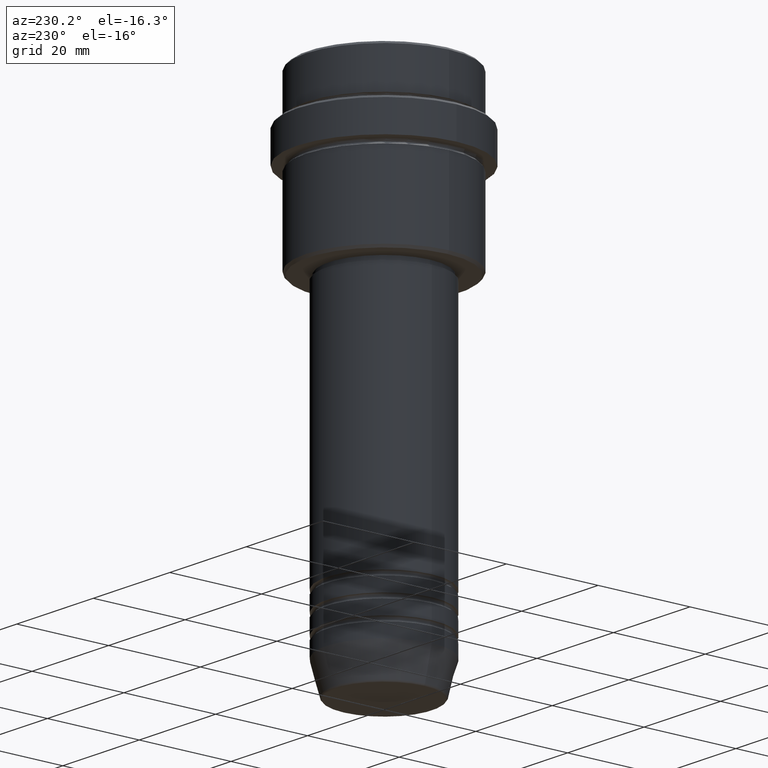
[diagram: clean part render]
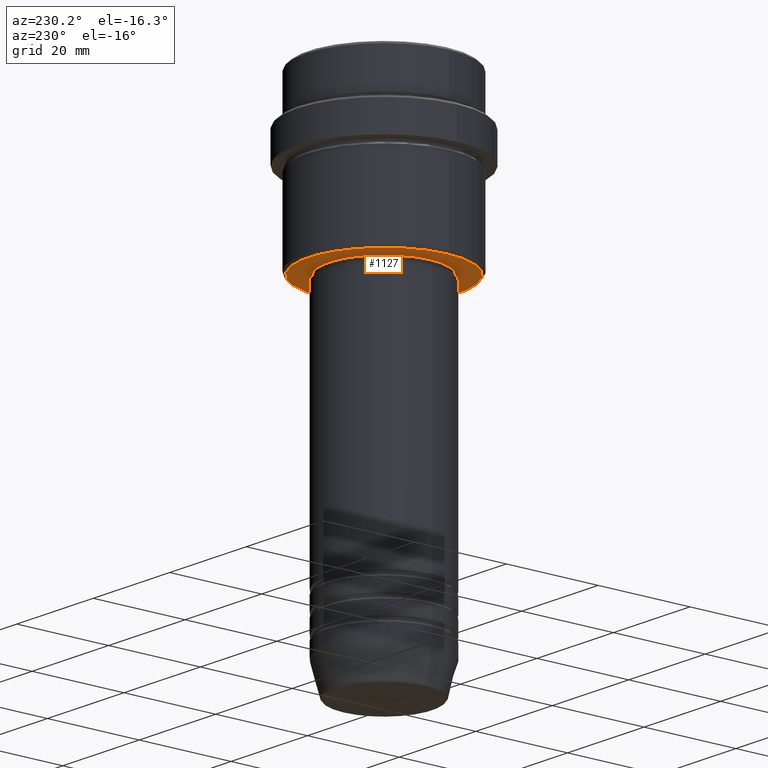
[diagram: same view with one face highlighted and labeled with its STEP entity id]
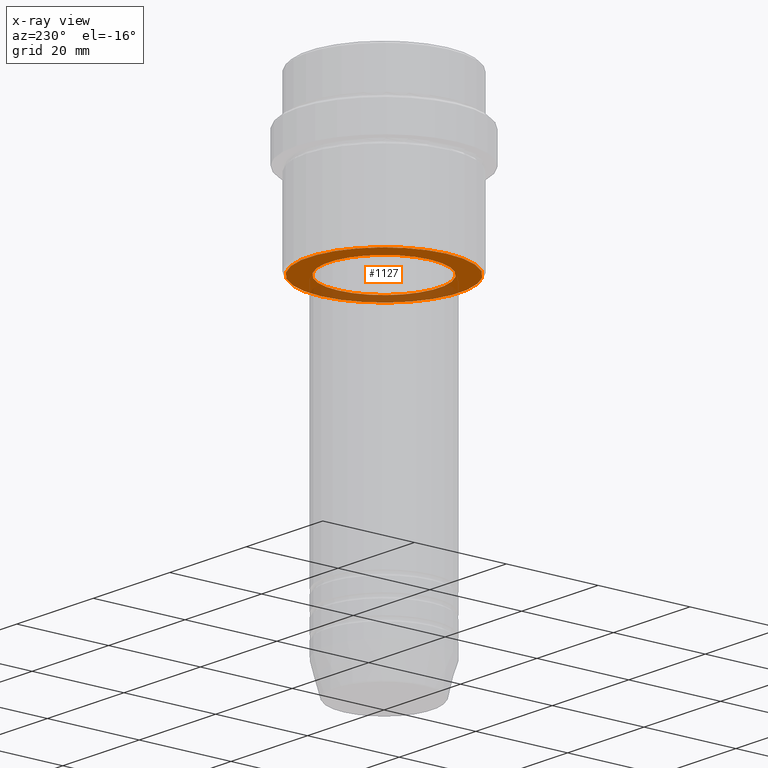
[diagram: x-ray of the same camera — body ghosted, the highlighted face saturated]
A machine part, auxiliary view. The second image highlights one B-rep face of the part: STEP entity #1127.
The next image is the same camera in x-ray: the body ghosted, the highlighted face saturated — about 31% of this face is hidden behind the body in this view.
In plain terms, the highlighted planar face has unit normal (0, 0, -1).
Its self-contained STEP definition (entity closure, byte-faithful):
#17 = CIRCLE ( 'NONE', #1317, 11.99999999999999289 ) ;
#55 = DIRECTION ( 'NONE',  ( -0.000000000000000000, -0.000000000000000000, 1.000000000000000000 ) ) ;
#86 = ORIENTED_EDGE ( 'NONE', *, *, #609, .T. ) ;
#130 = DIRECTION ( 'NONE',  ( 1.000000000000000000, 0.000000000000000000, 0.000000000000000000 ) ) ;
#153 = FACE_OUTER_BOUND ( 'NONE', #1087, .T. ) ;
#164 = FACE_BOUND ( 'NONE', #414, .T. ) ;
#175 = AXIS2_PLACEMENT_3D ( 'NONE', #475, #291, #377 ) ;
#252 = CIRCLE ( 'NONE', #1050, 16.49999999999997158 ) ;
#257 = DIRECTION ( 'NONE',  ( -0.000000000000000000, -0.000000000000000000, 1.000000000000000000 ) ) ;
#288 = DIRECTION ( 'NONE',  ( 1.000000000000000000, 0.000000000000000000, 0.000000000000000000 ) ) ;
#291 = DIRECTION ( 'NONE',  ( 0.000000000000000000, 0.000000000000000000, -1.000000000000000000 ) ) ;
#317 = AXIS2_PLACEMENT_3D ( 'NONE', #1034, #55, #288 ) ;
#334 = ORIENTED_EDGE ( 'NONE', *, *, #996, .T. ) ;
#377 = DIRECTION ( 'NONE',  ( -1.000000000000000000, 0.000000000000000000, -0.000000000000000000 ) ) ;
#414 = EDGE_LOOP ( 'NONE', ( #969, #868 ) ) ;
#454 = DIRECTION ( 'NONE',  ( -1.000000000000000000, 0.000000000000000000, 0.000000000000000000 ) ) ;
#462 = VERTEX_POINT ( 'NONE', #1138 ) ;
#475 = CARTESIAN_POINT ( 'NONE',  ( 0.000000000000000000, 17.00000000000000000, -36.00000000000000000 ) ) ;
#495 = CARTESIAN_POINT ( 'NONE',  ( 11.99999999999999289, 0.000000000000000000, -36.00000000000000000 ) ) ;
#578 = CARTESIAN_POINT ( 'NONE',  ( 0.000000000000000000, 0.000000000000000000, -36.00000000000000000 ) ) ;
#592 = CARTESIAN_POINT ( 'NONE',  ( 0.000000000000000000, 0.000000000000000000, -36.00000000000000000 ) ) ;
#609 = EDGE_CURVE ( 'NONE', #1129, #462, #922, .T. ) ;
#684 = CIRCLE ( 'NONE', #317, 11.99999999999999289 ) ;
#797 = AXIS2_PLACEMENT_3D ( 'NONE', #578, #915, #1341 ) ;
#813 = PLANE ( 'NONE',  #175 ) ;
#868 = ORIENTED_EDGE ( 'NONE', *, *, #1004, .T. ) ;
#915 = DIRECTION ( 'NONE',  ( 0.000000000000000000, 0.000000000000000000, -1.000000000000000000 ) ) ;
#922 = CIRCLE ( 'NONE', #797, 16.49999999999997158 ) ;
#948 = EDGE_CURVE ( 'NONE', #1184, #1398, #684, .T. ) ;
#969 = ORIENTED_EDGE ( 'NONE', *, *, #948, .T. ) ;
#996 = EDGE_CURVE ( 'NONE', #462, #1129, #252, .T. ) ;
#1004 = EDGE_CURVE ( 'NONE', #1398, #1184, #17, .T. ) ;
#1034 = CARTESIAN_POINT ( 'NONE',  ( 0.000000000000000000, 0.000000000000000000, -36.00000000000000000 ) ) ;
#1050 = AXIS2_PLACEMENT_3D ( 'NONE', #592, #1111, #454 ) ;
#1087 = EDGE_LOOP ( 'NONE', ( #86, #334 ) ) ;
#1109 = CARTESIAN_POINT ( 'NONE',  ( -11.99999999999999289, 1.469576158976823158E-15, -36.00000000000000000 ) ) ;
#1111 = DIRECTION ( 'NONE',  ( 0.000000000000000000, 0.000000000000000000, -1.000000000000000000 ) ) ;
#1127 = ADVANCED_FACE ( 'NONE', ( #153, #164 ), #813, .T. ) ;
#1129 = VERTEX_POINT ( 'NONE', #1367 ) ;
#1138 = CARTESIAN_POINT ( 'NONE',  ( -16.49999999999997158, 2.051283388571814915E-15, -36.00000000000000000 ) ) ;
#1184 = VERTEX_POINT ( 'NONE', #495 ) ;
#1317 = AXIS2_PLACEMENT_3D ( 'NONE', #1332, #257, #130 ) ;
#1332 = CARTESIAN_POINT ( 'NONE',  ( 0.000000000000000000, 0.000000000000000000, -36.00000000000000000 ) ) ;
#1341 = DIRECTION ( 'NONE',  ( -1.000000000000000000, 0.000000000000000000, 0.000000000000000000 ) ) ;
#1367 = CARTESIAN_POINT ( 'NONE',  ( 16.49999999999997158, 0.000000000000000000, -36.00000000000000000 ) ) ;
#1398 = VERTEX_POINT ( 'NONE', #1109 ) ;